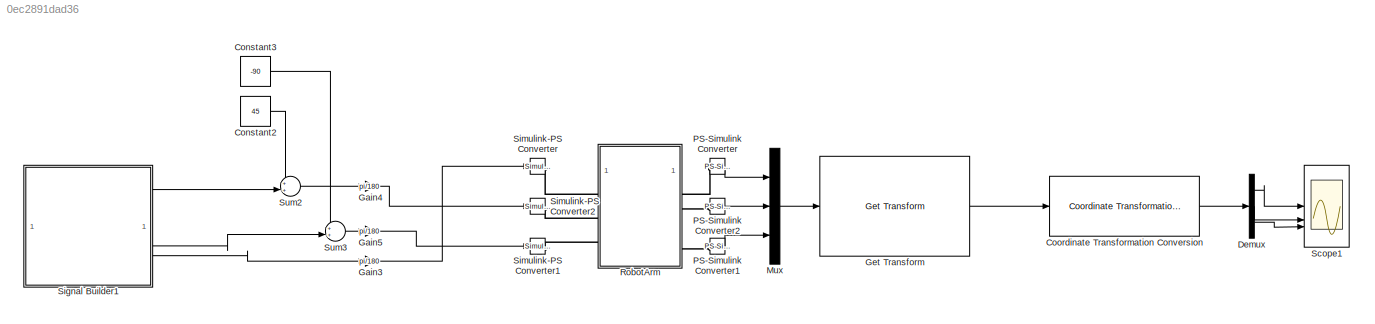
MODEL slx_0ec2891dad36
KIND model
CONFIG AbsTol = auto
CONFIG EnableMultiTasking = off
CONFIG FixedStep = auto
CONFIG MaxStep = auto
CONFIG MinStep = auto
CONFIG RelTol = 1e-3
CONFIG SampleTimeConstraint = Unconstrained
CONFIG SolverName = VariableStepAuto
CONFIG StartTime = 0.0
CONFIG StopTime = 10.0
WORKSPACE source: external: MATLAB File  (data not in archive)
BLOCK [Constant] Constant2
  Value = 45
BLOCK [Constant] Constant3
  Value = -90
BLOCK [Reference] Coordinate Transformation Conversion  REF=robotcorelib/Coordinate Transformation Conversion
  LibrarySourceBlock = robotutilslib/Coordinate Transformation Conversion
  SourceBlock = robotcorelib/Coordinate Transformation Conversion
  SourceType = robotics.slcore.internal.block.CoordinateTransformationConversion
BLOCK [Demux] Demux
  Outputs = 3
BLOCK [Gain] Gain3
  Gain = pi/180
BLOCK [Gain] Gain4
  Gain = pi/180
BLOCK [Gain] Gain5
  Gain = pi/180
BLOCK [Reference] Get Transform  REF=robotmaniplib/Get Transform
  SourceBlock = robotmaniplib/Get Transform
  SourceType = Get Transform
BLOCK [Mux] Mux
  DisplayOption = bar
  Inputs = 3
BLOCK [Reference] PS-Simulink Converter  REF=nesl_utility/PS-Simulink
Converter
  SourceBlock = nesl_utility/PS-Simulink\nConverter
  SourceType = PS-Simulink\nConverter
BLOCK [Reference] PS-Simulink Converter1  REF=nesl_utility/PS-Simulink
Converter
  SourceBlock = nesl_utility/PS-Simulink\nConverter
  SourceType = PS-Simulink\nConverter
BLOCK [Reference] PS-Simulink Converter2  REF=nesl_utility/PS-Simulink
Converter
  SourceBlock = nesl_utility/PS-Simulink\nConverter
  SourceType = PS-Simulink\nConverter
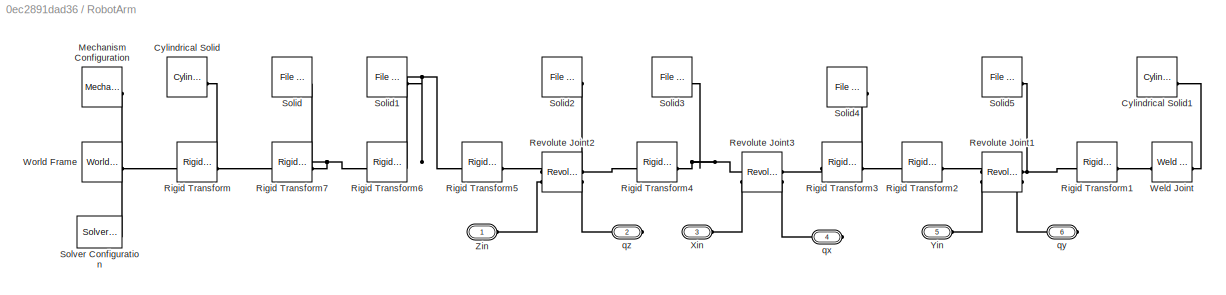
BLOCK [SubSystem] RobotArm
BLOCK [Reference] RobotArm/Cylindrical Solid  REF=sm_lib/Body Elements/Cylindrical Solid
  SourceBlock = sm_lib/Body Elements/Cylindrical Solid
  SourceType = Cylindrical Solid
BLOCK [Reference] RobotArm/Cylindrical Solid1  REF=sm_lib/Body Elements/Cylindrical Solid
  SourceBlock = sm_lib/Body Elements/Cylindrical Solid
  SourceType = Cylindrical Solid
BLOCK [Reference] RobotArm/Mechanism Configuration  REF=sm_lib/Utilities/Mechanism
Configuration
  SourceBlock = sm_lib/Utilities/Mechanism\nConfiguration
  SourceType = Mechanism\nConfiguration
BLOCK [Reference] RobotArm/Revolute Joint1  REF=sm_lib/Joints/Revolute Joint
  SourceBlock = sm_lib/Joints/Revolute Joint
  SourceType = Revolute Joint
BLOCK [Reference] RobotArm/Revolute Joint2  REF=sm_lib/Joints/Revolute Joint
  SourceBlock = sm_lib/Joints/Revolute Joint
  SourceType = Revolute Joint
BLOCK [Reference] RobotArm/Revolute Joint3  REF=sm_lib/Joints/Revolute Joint
  SourceBlock = sm_lib/Joints/Revolute Joint
  SourceType = Revolute Joint
BLOCK [Reference] RobotArm/Rigid Transform  REF=sm_lib/Frames and
Transforms/Rigid
Transform
  SourceBlock = sm_lib/Frames and\nTransforms/Rigid\nTransform
  SourceType = Rigid\nTransform
BLOCK [Reference] RobotArm/Rigid Transform1  REF=sm_lib/Frames and
Transforms/Rigid
Transform
  SourceBlock = sm_lib/Frames and\nTransforms/Rigid\nTransform
  SourceType = Rigid\nTransform
BLOCK [Reference] RobotArm/Rigid Transform2  REF=sm_lib/Frames and
Transforms/Rigid
Transform
  SourceBlock = sm_lib/Frames and\nTransforms/Rigid\nTransform
  SourceType = Rigid\nTransform
BLOCK [Reference] RobotArm/Rigid Transform3  REF=sm_lib/Frames and
Transforms/Rigid
Transform
  SourceBlock = sm_lib/Frames and\nTransforms/Rigid\nTransform
  SourceType = Rigid\nTransform
BLOCK [Reference] RobotArm/Rigid Transform4  REF=sm_lib/Frames and
Transforms/Rigid
Transform
  SourceBlock = sm_lib/Frames and\nTransforms/Rigid\nTransform
  SourceType = Rigid\nTransform
BLOCK [Reference] RobotArm/Rigid Transform5  REF=sm_lib/Frames and
Transforms/Rigid
Transform
  SourceBlock = sm_lib/Frames and\nTransforms/Rigid\nTransform
  SourceType = Rigid\nTransform
BLOCK [Reference] RobotArm/Rigid Transform6  REF=sm_lib/Frames and
Transforms/Rigid
Transform
  SourceBlock = sm_lib/Frames and\nTransforms/Rigid\nTransform
  SourceType = Rigid\nTransform
BLOCK [Reference] RobotArm/Rigid Transform7  REF=sm_lib/Frames and
Transforms/Rigid
Transform
  SourceBlock = sm_lib/Frames and\nTransforms/Rigid\nTransform
  SourceType = Rigid\nTransform
BLOCK [Reference] RobotArm/Solid  REF=sm_lib/Body Elements/File Solid
  SourceBlock = sm_lib/Body Elements/File Solid
  SourceType = File Solid
BLOCK [Reference] RobotArm/Solid1  REF=sm_lib/Body Elements/File Solid
  SourceBlock = sm_lib/Body Elements/File Solid
  SourceType = File Solid
BLOCK [Reference] RobotArm/Solid2  REF=sm_lib/Body Elements/File Solid
  SourceBlock = sm_lib/Body Elements/File Solid
  SourceType = File Solid
BLOCK [Reference] RobotArm/Solid3  REF=sm_lib/Body Elements/File Solid
  SourceBlock = sm_lib/Body Elements/File Solid
  SourceType = File Solid
BLOCK [Reference] RobotArm/Solid4  REF=sm_lib/Body Elements/File Solid
  SourceBlock = sm_lib/Body Elements/File Solid
  SourceType = File Solid
BLOCK [Reference] RobotArm/Solid5  REF=sm_lib/Body Elements/File Solid
  SourceBlock = sm_lib/Body Elements/File Solid
  SourceType = File Solid
BLOCK [Reference] RobotArm/Solver Configuration  REF=nesl_utility/Solver
Configuration
  SourceBlock = nesl_utility/Solver\nConfiguration
  SourceType = Solver\nConfiguration
BLOCK [Reference] RobotArm/Weld Joint  REF=sm_lib/Joints/Weld Joint
  SourceBlock = sm_lib/Joints/Weld Joint
  SourceType = Weld Joint
BLOCK [Reference] RobotArm/World Frame  REF=sm_lib/Frames and
Transforms/World Frame
  SourceBlock = sm_lib/Frames and\nTransforms/World Frame
  SourceType = World Frame
BLOCK [PMIOPort] RobotArm/Xin
  Port = 3
  Side = Left
BLOCK [PMIOPort] RobotArm/Yin
  Port = 5
  Side = Left
BLOCK [PMIOPort] RobotArm/Zin
  Side = Left
BLOCK [PMIOPort] RobotArm/qx
  Port = 4
  Side = Right
BLOCK [PMIOPort] RobotArm/qy
  Port = 6
  Side = Right
BLOCK [PMIOPort] RobotArm/qz
  Port = 2
  Side = Right
BLOCK [Scope] Scope1
  Floating = off
  NumInputPorts = 3
  ScopeSpecificationString = Simulink.scopes.TimeScopeBlockCfg('CurrentConfiguration', extmgr.ConfigurationSet(extmgr.Configuration('Core','General UI',true),extmgr.Configuration('Core','Source UI',true),extmgr.Configuration('Sources','WiredSimulink',true),extmgr.Configuration('Visuals','Time Domain',true,'SerializedDisplays',{struct('MinYLimReal','-0.03716','MaxYLimReal','0.10179','YLabelReal','','MinYLimMag','0.00000','MaxY...<+2831ch>
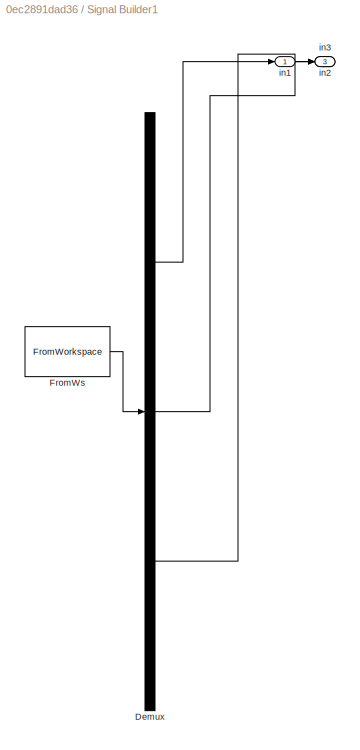
BLOCK [SubSystem] Signal Builder1
  ClipboardFcn = sigbuilder_block('clipboard');
  CloseFcn = sigbuilder_block('close');
  ContinueFcn = sigbuilder_block('continue');
  CopyFcn = sigbuilder_block('copy');
  DeleteFcn = sigbuilder_block('delete');
  LoadFcn = sigbuilder_block('load');
  MaskHideContents = on
  ModelCloseFcn = sigbuilder_block('modelClose');
  NameChangeFcn = sigbuilder_block('namechange');
  OpenFcn = sigbuilder_block('open',[110.4 73.8 550.2 439.2 ]);
  PauseFcn = sigbuilder_block('pause');
  PreSaveFcn = sigbuilder_block('preSave');
  StartFcn = sigbuilder_block('start');
  StopFcn = sigbuilder_block('stop');
  Tag = STV Subsys
BLOCK [Demux] Signal Builder1/Demux
  DisplayOption = none
  Outputs = 3
  Tag = STV Demux
BLOCK [FromWorkspace] Signal Builder1/FromWs
  Tag = STV FromWs
  VariableName = tuvar
BLOCK [Outport] Signal Builder1/in1
  Tag = STV Outport
BLOCK [Outport] Signal Builder1/in2
  Port = 2
  Tag = STV Outport
BLOCK [Outport] Signal Builder1/in3
  Port = 3
  Tag = STV Outport
BLOCK [Reference] Simulink-PS Converter  REF=nesl_utility/Simulink-PS
Converter
  SourceBlock = nesl_utility/Simulink-PS\nConverter
  SourceType = Simulink-PS\nConverter
BLOCK [Reference] Simulink-PS Converter1  REF=nesl_utility/Simulink-PS
Converter
  SourceBlock = nesl_utility/Simulink-PS\nConverter
  SourceType = Simulink-PS\nConverter
BLOCK [Reference] Simulink-PS Converter2  REF=nesl_utility/Simulink-PS
Converter
  SourceBlock = nesl_utility/Simulink-PS\nConverter
  SourceType = Simulink-PS\nConverter
BLOCK [Sum] Sum2
  Inputs = ++|
BLOCK [Sum] Sum3
  Inputs = ++|
LINE Constant2:1 -> Sum2:1
LINE Constant3:1 -> Sum3:1
LINE Coordinate Transformation Conversion:1 -> Demux:1
LINE Demux:1 -> Scope1:1
LINE Demux:2 -> Scope1:2
LINE Demux:3 -> Scope1:3
LINE Gain3:1 -> Simulink-PS Converter:1
LINE Gain4:1 -> Simulink-PS Converter2:1
LINE Gain5:1 -> Simulink-PS Converter1:1
LINE Get Transform:1 -> Coordinate Transformation Conversion:1
LINE Mux:1 -> Get Transform:1
LINE PS-Simulink Converter1:1 -> Mux:3
LINE PS-Simulink Converter2:1 -> Mux:2
LINE PS-Simulink Converter:1 -> Mux:1
LINE Signal Builder1:1 -> Sum2:2
LINE Signal Builder1:2 -> Sum3:2
LINE Signal Builder1:3 -> Gain3:1
LINE Sum2:1 -> Gain4:1
LINE Sum3:1 -> Gain5:1
PLINE PS-Simulink Converter1:LConn1 -- RobotArm:RConn3
PLINE PS-Simulink Converter2:LConn1 -- RobotArm:RConn2
PLINE PS-Simulink Converter:LConn1 -- RobotArm:RConn1
PLINE RobotArm/Cylindrical Solid1:RConn1 -- RobotArm/Weld Joint:RConn1
PNET net1: RobotArm/Cylindrical Solid:RConn1 -- RobotArm/Rigid Transform7:LConn1 -- RobotArm/Rigid Transform:RConn1
PNET net2: RobotArm/Mechanism Configuration:RConn1 -- RobotArm/Rigid Transform:LConn1 -- RobotArm/Solver Configuration:RConn1 -- RobotArm/World Frame:RConn1
PLINE RobotArm/Revolute Joint1:LConn1 -- RobotArm/Rigid Transform2:RConn1
PLINE RobotArm/Revolute Joint1:LConn2 -- RobotArm/Yin:RConn1
PNET net3: RobotArm/Revolute Joint1:RConn1 -- RobotArm/Rigid Transform1:LConn1 -- RobotArm/Solid5:RConn1
PLINE RobotArm/Revolute Joint1:RConn2 -- RobotArm/qy:RConn1
PLINE RobotArm/Revolute Joint2:LConn1 -- RobotArm/Rigid Transform5:RConn1
PLINE RobotArm/Revolute Joint2:LConn2 -- RobotArm/Zin:RConn1
PNET net4: RobotArm/Revolute Joint2:RConn1 -- RobotArm/Rigid Transform4:LConn1 -- RobotArm/Solid2:RConn1
PLINE RobotArm/Revolute Joint2:RConn2 -- RobotArm/qz:RConn1
PNET net5: RobotArm/Revolute Joint3:LConn1 -- RobotArm/Rigid Transform4:RConn1 -- RobotArm/Solid3:RConn1
PLINE RobotArm/Revolute Joint3:LConn2 -- RobotArm/Xin:RConn1
PLINE RobotArm/Revolute Joint3:RConn1 -- RobotArm/Rigid Transform3:LConn1
PLINE RobotArm/Revolute Joint3:RConn2 -- RobotArm/qx:RConn1
PLINE RobotArm/Rigid Transform1:RConn1 -- RobotArm/Weld Joint:LConn1
PNET net6: RobotArm/Rigid Transform2:LConn1 -- RobotArm/Rigid Transform3:RConn1 -- RobotArm/Solid4:RConn1
PNET net7: RobotArm/Rigid Transform5:LConn1 -- RobotArm/Rigid Transform6:RConn1 -- RobotArm/Solid1:RConn1
PNET net8: RobotArm/Rigid Transform6:LConn1 -- RobotArm/Rigid Transform7:RConn1 -- RobotArm/Solid:RConn1
PLINE RobotArm:LConn1 -- Simulink-PS Converter:RConn1
PLINE RobotArm:LConn2 -- Simulink-PS Converter2:RConn1
PLINE RobotArm:LConn3 -- Simulink-PS Converter1:RConn1
note: PNET lines group multi-terminal physical nets as a canonical sorted terminal list (undirected conserving connections); 2-terminal nets keep the pairwise PLINE form
